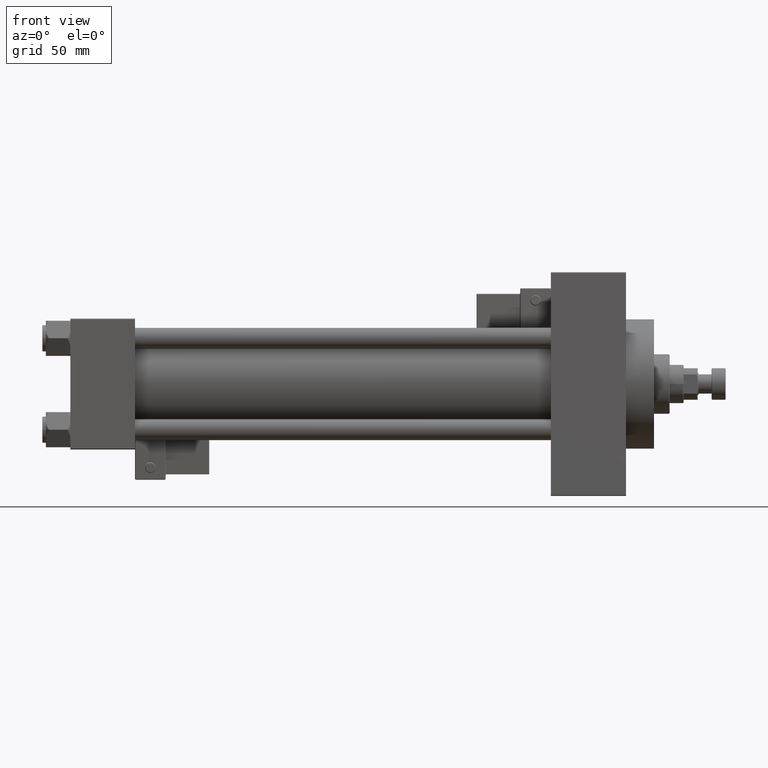
[diagram: clean part render]
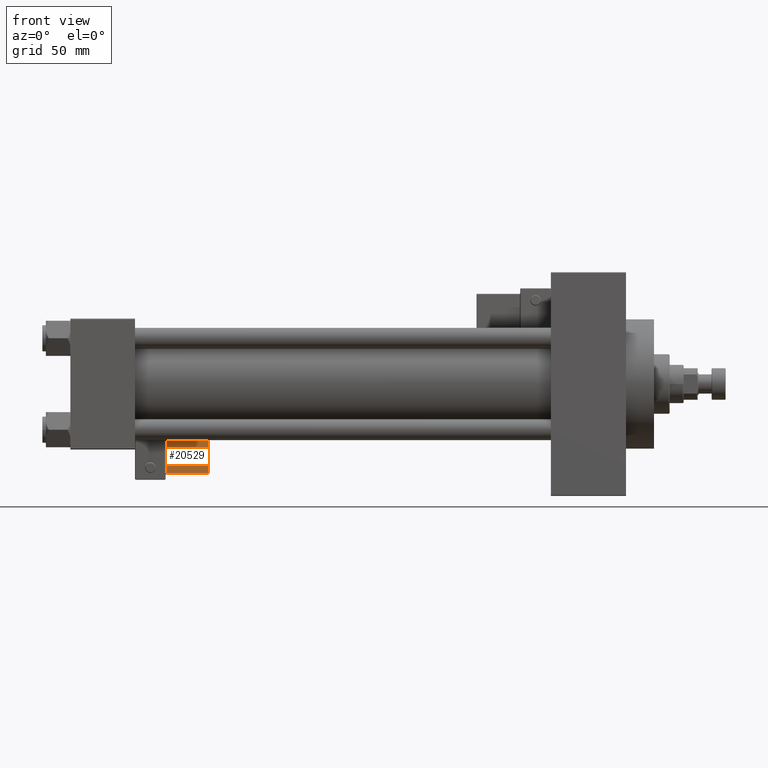
[diagram: same view with one face highlighted and labeled with its STEP entity id]
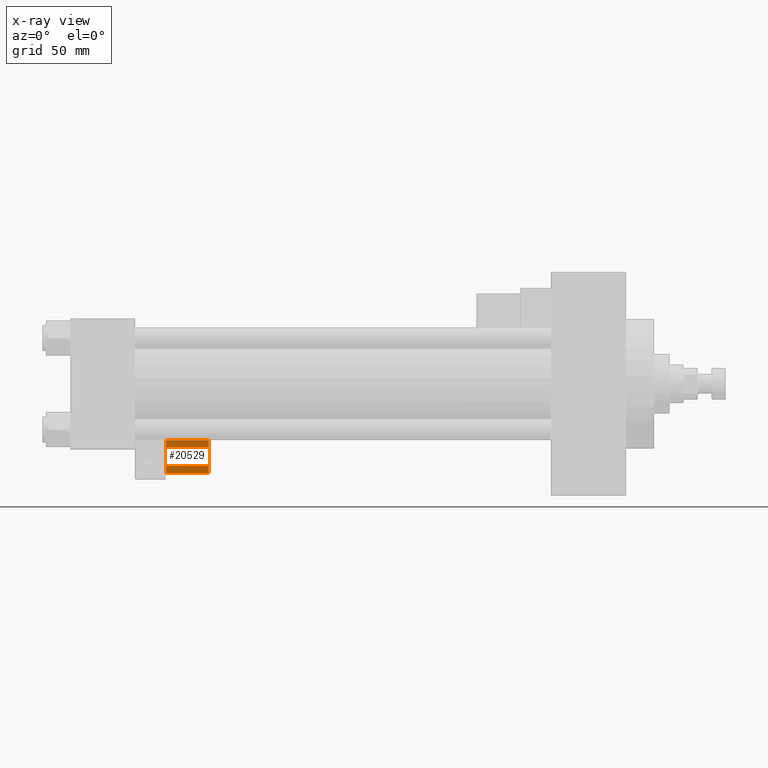
[diagram: x-ray of the same camera — body ghosted, the highlighted face saturated]
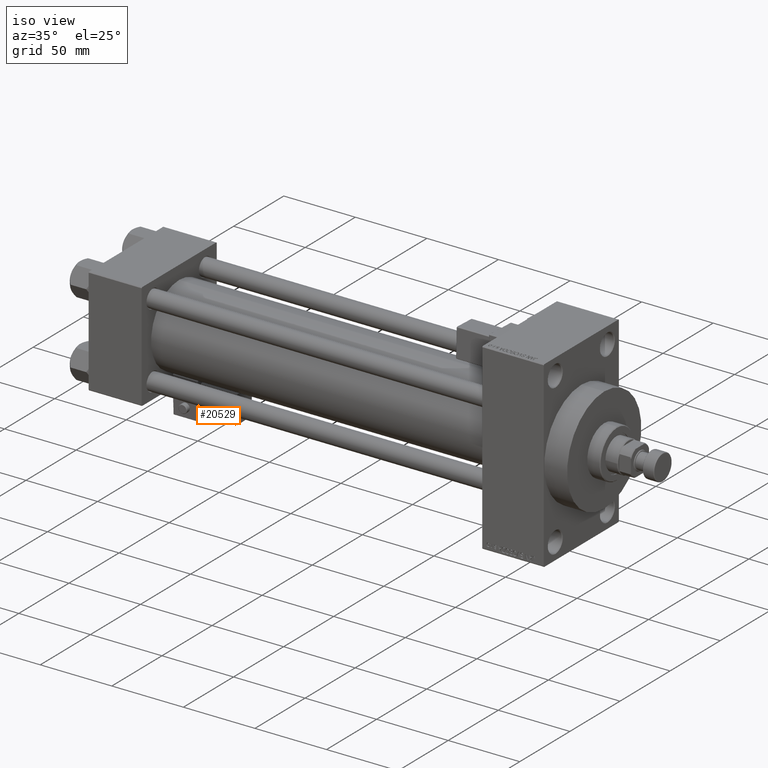
[diagram: same view with one face highlighted and labeled with its STEP entity id]
A machine part, front view. The second image highlights one B-rep face of the part: STEP entity #20529.
The next image is the same camera in x-ray: the body ghosted, the highlighted face saturated — about 0% of this face is hidden behind the body in this view.
A second angle (iso view) of the same face is appended — the face is thin or edge-on in the first view.
In plain terms, the highlighted planar face has unit normal (0, 0.9994, 0.0353).
Its self-contained STEP definition (entity closure, byte-faithful):
#197 = DIRECTION ( 'NONE',  ( 0.000000000000000000, -0.000000000000000000, 1.000000000000000000 ) ) ;
#780 = EDGE_CURVE ( 'NONE', #25503, #41513, #29794, .T. ) ;
#2545 = AXIS2_PLACEMENT_3D ( 'NONE', #38581, #30768, #197 ) ;
#3824 = ORIENTED_EDGE ( 'NONE', *, *, #34756, .T. ) ;
#4342 = CARTESIAN_POINT ( 'NONE',  ( 9.250000000000003553, -36.25000000000000000, 21.50000000000000000 ) ) ;
#4569 = ORIENTED_EDGE ( 'NONE', *, *, #37559, .T. ) ;
#4940 = LINE ( 'NONE', #27163, #18351 ) ;
#11128 = VECTOR ( 'NONE', #14295, 1000.000000000000000 ) ;
#12744 = LINE ( 'NONE', #16526, #42422 ) ;
#14295 = DIRECTION ( 'NONE',  ( -1.000000000000000000, 0.000000000000000000, -1.334402673828313339E-16 ) ) ;
#14529 = CARTESIAN_POINT ( 'NONE',  ( 33.75000000000000000, -36.25000000000000000, 21.50000000000000000 ) ) ;
#15358 = PLANE ( 'NONE',  #2545 ) ;
#16526 = CARTESIAN_POINT ( 'NONE',  ( 33.75000000000000000, -36.25000000000000000, 2.500000000000009326 ) ) ;
#18351 = VECTOR ( 'NONE', #19349, 1000.000000000000000 ) ;
#19349 = DIRECTION ( 'NONE',  ( -1.734723475976807587E-16, -0.000000000000000000, 1.000000000000000000 ) ) ;
#20529 = ADVANCED_FACE ( 'NONE', ( #35543 ), #15358, .F. ) ;
#21401 = VERTEX_POINT ( 'NONE', #23028 ) ;
#22058 = EDGE_LOOP ( 'NONE', ( #28524, #3824, #27075, #4569 ) ) ;
#22458 = CARTESIAN_POINT ( 'NONE',  ( 9.250000000000005329, -36.25000000000000000, 2.000000000000005329 ) ) ;
#23028 = CARTESIAN_POINT ( 'NONE',  ( 33.24999999999999289, -36.25000000000000000, 21.50000000000000000 ) ) ;
#23612 = VECTOR ( 'NONE', #30288, 1000.000000000000000 ) ;
#25503 = VERTEX_POINT ( 'NONE', #4342 ) ;
#27075 = ORIENTED_EDGE ( 'NONE', *, *, #36402, .T. ) ;
#27163 = CARTESIAN_POINT ( 'NONE',  ( 33.24999999999999289, -36.25000000000000000, 22.00000000000000355 ) ) ;
#28524 = ORIENTED_EDGE ( 'NONE', *, *, #780, .T. ) ;
#29794 = LINE ( 'NONE', #22458, #23612 ) ;
#30288 = DIRECTION ( 'NONE',  ( 1.334402673828313339E-16, 0.000000000000000000, -1.000000000000000000 ) ) ;
#30768 = DIRECTION ( 'NONE',  ( -0.000000000000000000, 1.000000000000000000, 0.000000000000000000 ) ) ;
#32031 = CARTESIAN_POINT ( 'NONE',  ( 9.250000000000005329, -36.25000000000000000, 2.500000000000004885 ) ) ;
#34756 = EDGE_CURVE ( 'NONE', #41513, #43228, #12744, .T. ) ;
#35543 = FACE_OUTER_BOUND ( 'NONE', #22058, .T. ) ;
#36402 = EDGE_CURVE ( 'NONE', #43228, #21401, #4940, .T. ) ;
#37559 = EDGE_CURVE ( 'NONE', #21401, #25503, #48832, .T. ) ;
#38526 = CARTESIAN_POINT ( 'NONE',  ( 33.24999999999999289, -36.25000000000000000, 2.500000000000008438 ) ) ;
#38581 = CARTESIAN_POINT ( 'NONE',  ( 33.75000000000000000, -36.25000000000000000, 22.00000000000000355 ) ) ;
#40242 = DIRECTION ( 'NONE',  ( 1.000000000000000000, -0.000000000000000000, 1.334402673828313339E-16 ) ) ;
#41513 = VERTEX_POINT ( 'NONE', #32031 ) ;
#42422 = VECTOR ( 'NONE', #40242, 1000.000000000000000 ) ;
#43228 = VERTEX_POINT ( 'NONE', #38526 ) ;
#48832 = LINE ( 'NONE', #14529, #11128 ) ;